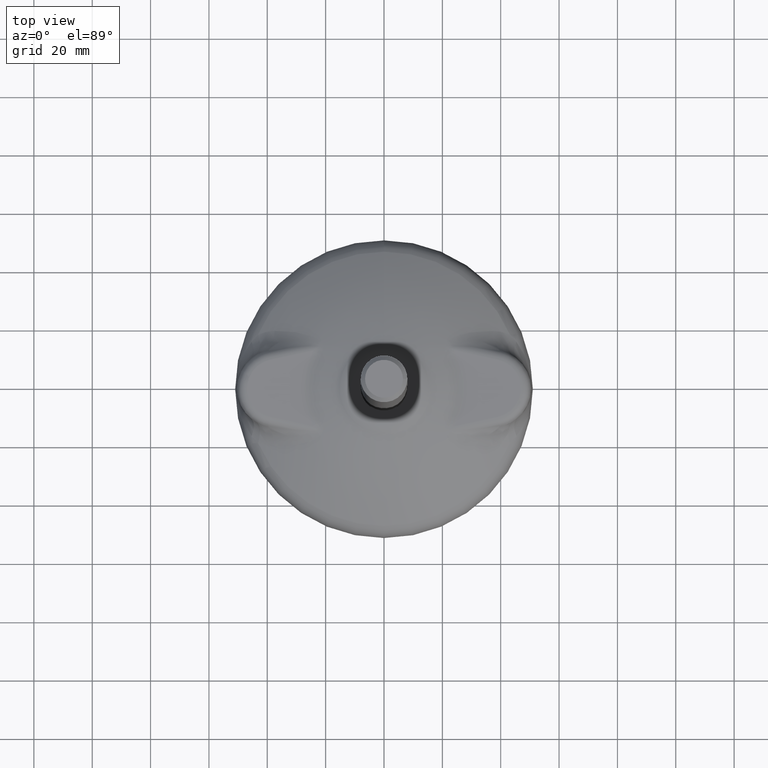
[diagram: clean part render]
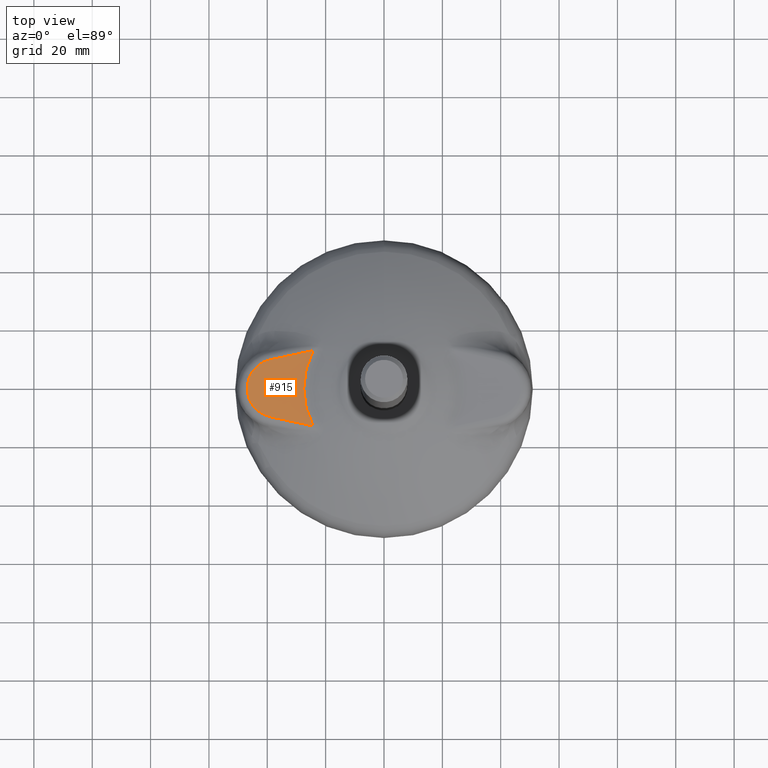
[diagram: same view with one face highlighted and labeled with its STEP entity id]
A machine part, top view. The second image highlights one B-rep face of the part: STEP entity #915.
In plain terms, the highlighted planar face has unit normal (0, 0, 1).
Its self-contained STEP definition (entity closure, byte-faithful):
#95=LINE('',#1405,#118);
#96=LINE('',#1409,#119);
#118=VECTOR('',#1142,0.999999999999998);
#119=VECTOR('',#1145,1.);
#150=FACE_OUTER_BOUND('',#217,.T.);
#217=EDGE_LOOP('',(#577,#578,#579,#580));
#285=CIRCLE('',#1009,27.5170021834659);
#286=CIRCLE('',#1010,9.99751007502379);
#361=VERTEX_POINT('',#1403);
#362=VERTEX_POINT('',#1404);
#363=VERTEX_POINT('',#1406);
#364=VERTEX_POINT('',#1408);
#444=EDGE_CURVE('',#361,#362,#95,.F.);
#445=EDGE_CURVE('',#362,#363,#285,.F.);
#446=EDGE_CURVE('',#363,#364,#96,.F.);
#447=EDGE_CURVE('',#364,#361,#286,.T.);
#577=ORIENTED_EDGE('',*,*,#444,.T.);
#578=ORIENTED_EDGE('',*,*,#445,.T.);
#579=ORIENTED_EDGE('',*,*,#446,.T.);
#580=ORIENTED_EDGE('',*,*,#447,.T.);
#837=PLANE('',#1008);
#915=ADVANCED_FACE('',(#150),#837,.T.);
#1008=AXIS2_PLACEMENT_3D('',#1402,#1140,#1141);
#1009=AXIS2_PLACEMENT_3D('',#1407,#1143,#1144);
#1010=AXIS2_PLACEMENT_3D('',#1410,#1146,#1147);
#1140=DIRECTION('center_axis',(0.,0.,1.));
#1141=DIRECTION('ref_axis',(1.,0.,0.));
#1142=DIRECTION('',(-0.978147600734717,0.20791169081347,0.));
#1143=DIRECTION('center_axis',(0.,0.,1.));
#1144=DIRECTION('ref_axis',(1.,0.,0.));
#1145=DIRECTION('',(0.97814760073472,0.20791169081346,0.));
#1146=DIRECTION('center_axis',(0.,0.,1.));
#1147=DIRECTION('ref_axis',(1.,0.,0.));
#1402=CARTESIAN_POINT('Origin',(-36.9,1.729065E-13,18.));
#1403=CARTESIAN_POINT('',(-38.9785992236229,-9.77904049320534,18.));
#1404=CARTESIAN_POINT('',(-24.3071728847044,-12.8975484305336,18.));
#1405=CARTESIAN_POINT('',(-38.9785992236229,-9.77904049320536,18.));
#1406=CARTESIAN_POINT('',(-24.3071728847041,12.8975484305341,18.));
#1407=CARTESIAN_POINT('Origin',(0.,-1.131577E-13,18.));
#1408=CARTESIAN_POINT('',(-38.9785992236228,9.77904049320588,18.));
#1409=CARTESIAN_POINT('',(-38.9785992236228,9.7790404932059,18.));
#1410=CARTESIAN_POINT('Origin',(-36.9,1.729065E-13,18.));